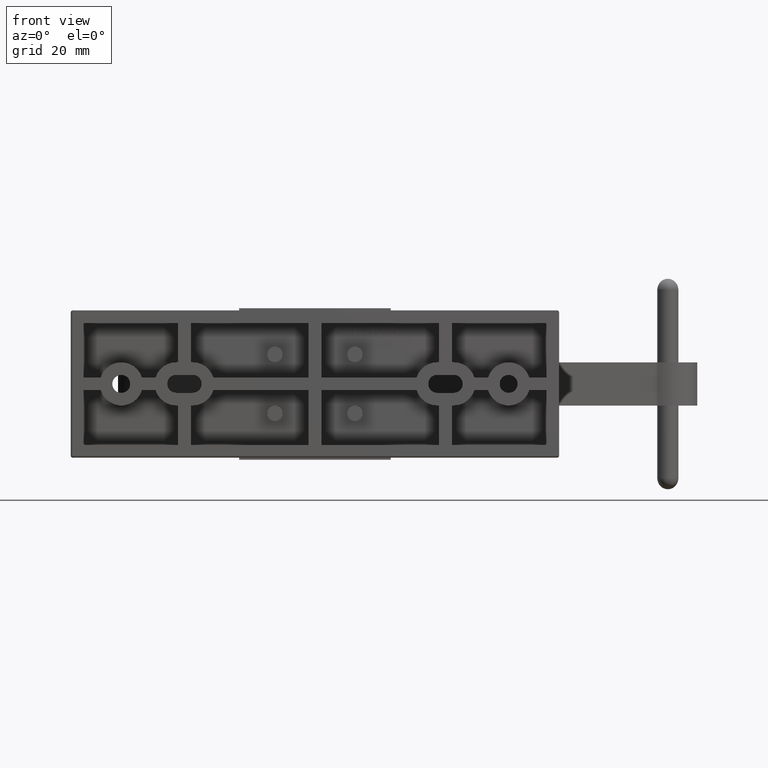
[diagram: clean part render]
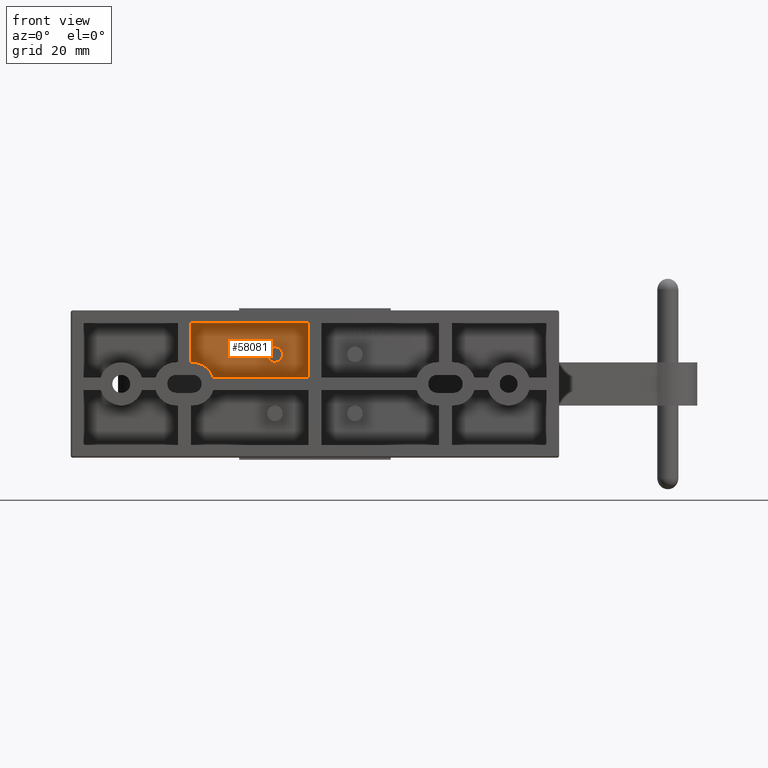
[diagram: same view with one face highlighted and labeled with its STEP entity id]
A machine part, front view. The second image highlights one B-rep face of the part: STEP entity #58081.
In plain terms, the highlighted planar face has unit normal (0, -1, 0).
Its self-contained STEP definition (entity closure, byte-faithful):
#15438 = EDGE_CURVE ( 'NONE', #54143, #54144, #44144, .T. ) ;
#15440 = EDGE_CURVE ( 'NONE', #54140, #54141, #44140, .T. ) ;
#15446 = EDGE_CURVE ( 'NONE', #54141, #54142, #44153, .T. ) ;
#15448 = EDGE_CURVE ( 'NONE', #54144, #54139, #44164, .T. ) ;
#15449 = EDGE_CURVE ( 'NONE', #54139, #54140, #44166, .T. ) ;
#15450 = EDGE_CURVE ( 'NONE', #54142, #54143, #44170, .T. ) ;
#17731 = EDGE_LOOP ( 'NONE', ( #24957, #24958, #24959, #24960, #24961, #24962 ) ) ;
#17733 = EDGE_LOOP ( 'NONE', ( #24963, #24964 ) ) ;
#21770 = EDGE_CURVE ( 'NONE', #53251, #53252, #30921, .T. ) ;
#24957 = ORIENTED_EDGE ( 'NONE', *, *, #15449, .T. ) ;
#24958 = ORIENTED_EDGE ( 'NONE', *, *, #15440, .T. ) ;
#24959 = ORIENTED_EDGE ( 'NONE', *, *, #15446, .T. ) ;
#24960 = ORIENTED_EDGE ( 'NONE', *, *, #15450, .T. ) ;
#24961 = ORIENTED_EDGE ( 'NONE', *, *, #15438, .T. ) ;
#24962 = ORIENTED_EDGE ( 'NONE', *, *, #15448, .T. ) ;
#24963 = ORIENTED_EDGE ( 'NONE', *, *, #54625, .T. ) ;
#24964 = ORIENTED_EDGE ( 'NONE', *, *, #21770, .T. ) ;
#30171 = AXIS2_PLACEMENT_3D ( 'NONE', #31975, #31977, #31978 ) ;
#30921 = CIRCLE ( 'NONE', #30171, 0.1000000000000000200 ) ;
#31975 = CARTESIAN_POINT ( 'NONE',  ( -0.5937500000000002200, 1.000000000000000000, 0.4375000000000001100 ) ) ;
#31977 = DIRECTION ( 'NONE',  ( -1.836909530733565900E-016, 1.000000000000000000, -0.0000000000000000000 ) ) ;
#31978 = DIRECTION ( 'NONE',  ( 1.000000000000000000, 0.0000000000000000000, 0.0000000000000000000 ) ) ;
#36564 = CIRCLE ( 'NONE', #36792, 0.1000000000000000200 ) ;
#36792 = AXIS2_PLACEMENT_3D ( 'NONE', #39655, #39681, #39682 ) ;
#36866 = AXIS2_PLACEMENT_3D ( 'NONE', #45252, #45257, #45258 ) ;
#37343 = CARTESIAN_POINT ( 'NONE',  ( -0.4937500000000001900, 1.000000000000000000, 0.4375000000000001100 ) ) ;
#37344 = CARTESIAN_POINT ( 'NONE',  ( -0.6937500000000002000, 1.000000000000000000, 0.4375000000000001100 ) ) ;
#38231 = CARTESIAN_POINT ( 'NONE',  ( -0.09375000000000025000, 1.000000000000000000, 0.9062499999999993300 ) ) ;
#38232 = CARTESIAN_POINT ( 'NONE',  ( -1.843750000000000200, 0.9999999999999996700, 0.9062499999999991100 ) ) ;
#38233 = CARTESIAN_POINT ( 'NONE',  ( -1.843750000000000200, 0.9999999999999996700, 0.3205000000000004500 ) ) ;
#38234 = CARTESIAN_POINT ( 'NONE',  ( -1.814500000000000900, 0.9999999999999996700, 0.3205000000000005100 ) ) ;
#38235 = CARTESIAN_POINT ( 'NONE',  ( -1.508018047023972400, 0.9999999999999996700, 0.09374999999999951400 ) ) ;
#38236 = CARTESIAN_POINT ( 'NONE',  ( -0.09375000000000025000, 1.000000000000000000, 0.09374999999999951400 ) ) ;
#39655 = CARTESIAN_POINT ( 'NONE',  ( -0.5937500000000002200, 1.000000000000000000, 0.4375000000000001100 ) ) ;
#39681 = DIRECTION ( 'NONE',  ( -1.836909530733565900E-016, 1.000000000000000000, -0.0000000000000000000 ) ) ;
#39682 = DIRECTION ( 'NONE',  ( 1.000000000000000000, 0.0000000000000000000, 0.0000000000000000000 ) ) ;
#43133 = FACE_OUTER_BOUND ( 'NONE', #17731, .T. ) ;
#43139 = FACE_BOUND ( 'NONE', #17733, .T. ) ;
#44140 = LINE ( 'NONE', #46157, #44148 ) ;
#44144 = LINE ( 'NONE', #46153, #44145 ) ;
#44145 = VECTOR ( 'NONE', #46155, 39.37007874015748100 ) ;
#44148 = VECTOR ( 'NONE', #46165, 39.37007874015748100 ) ;
#44153 = LINE ( 'NONE', #46187, #44160 ) ;
#44160 = VECTOR ( 'NONE', #46196, 39.37007874015748100 ) ;
#44164 = LINE ( 'NONE', #46204, #44165 ) ;
#44165 = VECTOR ( 'NONE', #46206, 39.37007874015748100 ) ;
#44166 = LINE ( 'NONE', #46209, #44167 ) ;
#44167 = VECTOR ( 'NONE', #46211, 39.37007874015748100 ) ;
#44170 = CIRCLE ( 'NONE', #51141, 0.3205000000000005600 ) ;
#45249 = PLANE ( 'NONE',  #36866 ) ;
#45252 = CARTESIAN_POINT ( 'NONE',  ( -1.814500000000000900, 0.9999999999999996700, -9.006984854812855200E-017 ) ) ;
#45257 = DIRECTION ( 'NONE',  ( 1.836909530733566100E-016, -1.000000000000000000, 0.0000000000000000000 ) ) ;
#45258 = DIRECTION ( 'NONE',  ( 1.000000000000000000, 1.836909530733566100E-016, 0.0000000000000000000 ) ) ;
#46153 = CARTESIAN_POINT ( 'NONE',  ( -1.508018047023972400, 0.9999999999999996700, 0.09374999999999951400 ) ) ;
#46155 = DIRECTION ( 'NONE',  ( 1.000000000000000000, 1.836909530733566100E-016, 0.0000000000000000000 ) ) ;
#46157 = CARTESIAN_POINT ( 'NONE',  ( -1.843750000000000200, 0.9999999999999996700, 0.9062499999999991100 ) ) ;
#46165 = DIRECTION ( 'NONE',  ( 0.0000000000000000000, 0.0000000000000000000, -1.000000000000000000 ) ) ;
#46187 = CARTESIAN_POINT ( 'NONE',  ( -1.814500000000000900, 0.9999999999999996700, 0.3205000000000004500 ) ) ;
#46193 = CARTESIAN_POINT ( 'NONE',  ( -1.814500000000000900, 0.9999999999999996700, -9.006984854812855200E-017 ) ) ;
#46196 = DIRECTION ( 'NONE',  ( 1.000000000000000000, 1.836909530733556000E-016, -0.0000000000000000000 ) ) ;
#46204 = CARTESIAN_POINT ( 'NONE',  ( -0.09375000000000025000, 1.000000000000000000, 0.9062499999999993300 ) ) ;
#46206 = DIRECTION ( 'NONE',  ( -0.0000000000000000000, -0.0000000000000000000, 1.000000000000000000 ) ) ;
#46209 = CARTESIAN_POINT ( 'NONE',  ( -0.09375000000000025000, 1.000000000000000000, 0.9062499999999993300 ) ) ;
#46211 = DIRECTION ( 'NONE',  ( -1.000000000000000000, -1.836909530733566100E-016, -1.561055996379579000E-016 ) ) ;
#46215 = DIRECTION ( 'NONE',  ( -1.836909530733565900E-016, 1.000000000000000000, -0.0000000000000000000 ) ) ;
#46217 = DIRECTION ( 'NONE',  ( 1.000000000000000000, 0.0000000000000000000, 0.0000000000000000000 ) ) ;
#51141 = AXIS2_PLACEMENT_3D ( 'NONE', #46193, #46215, #46217 ) ;
#53251 = VERTEX_POINT ( 'NONE', #37343 ) ;
#53252 = VERTEX_POINT ( 'NONE', #37344 ) ;
#54139 = VERTEX_POINT ( 'NONE', #38231 ) ;
#54140 = VERTEX_POINT ( 'NONE', #38232 ) ;
#54141 = VERTEX_POINT ( 'NONE', #38233 ) ;
#54142 = VERTEX_POINT ( 'NONE', #38234 ) ;
#54143 = VERTEX_POINT ( 'NONE', #38235 ) ;
#54144 = VERTEX_POINT ( 'NONE', #38236 ) ;
#54625 = EDGE_CURVE ( 'NONE', #53252, #53251, #36564, .T. ) ;
#58081 = ADVANCED_FACE ( 'NONE', ( #43133, #43139 ), #45249, .T. ) ;